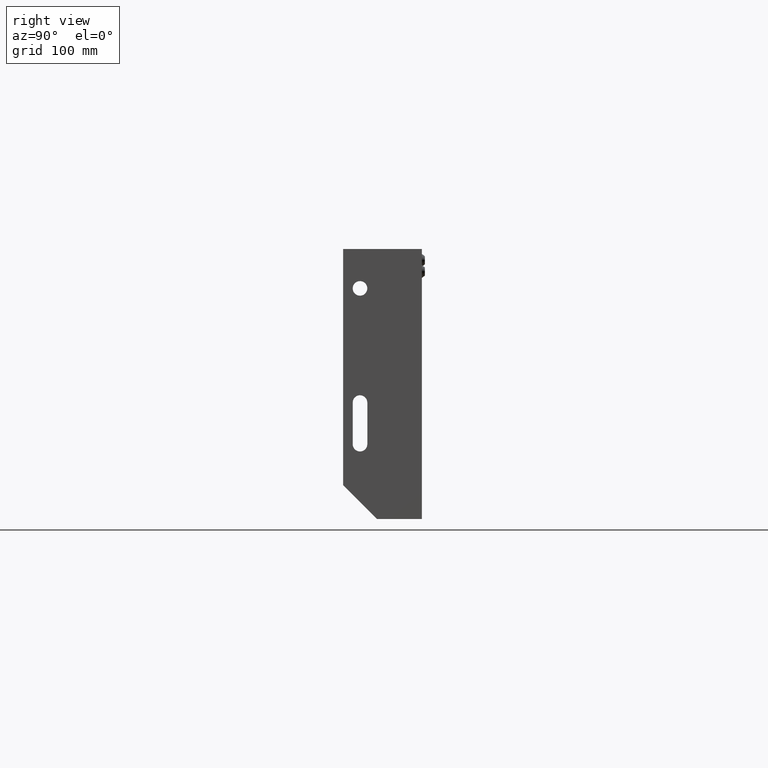
[diagram: clean part render]
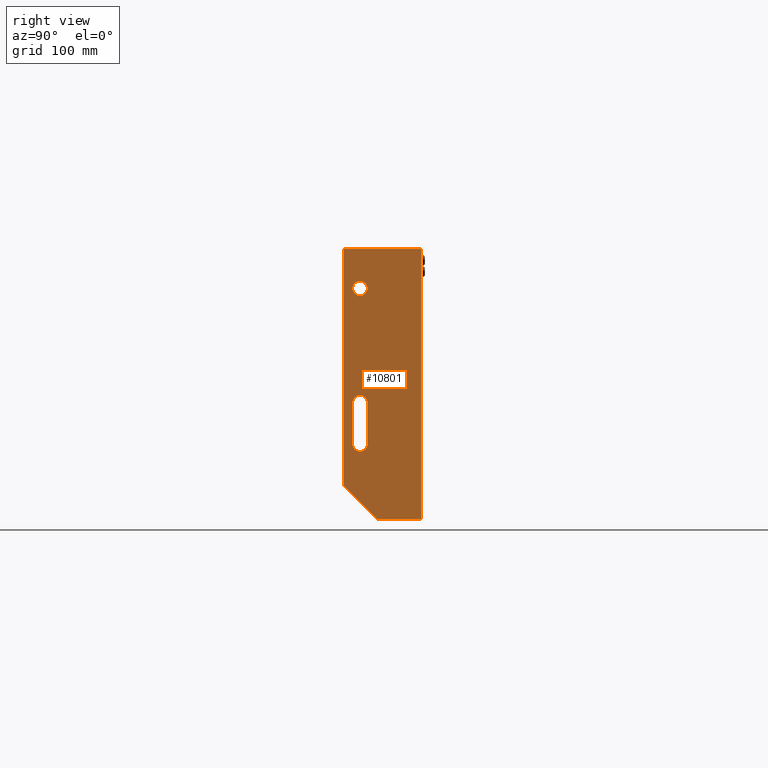
[diagram: same view with one face highlighted and labeled with its STEP entity id]
A machine part, right view. The second image highlights one B-rep face of the part: STEP entity #10801.
In plain terms, the highlighted planar face has unit normal (-1, 0, 0).
Its self-contained STEP definition (entity closure, byte-faithful):
#89 = EDGE_CURVE ( 'NONE', #11671, #13235, #15089, .T. ) ;
#115 = VERTEX_POINT ( 'NONE', #17759 ) ;
#583 = CARTESIAN_POINT ( 'NONE',  ( 300.0000000000000000, 15.00000000000008900, -35.00000000000000000 ) ) ;
#608 = ORIENTED_EDGE ( 'NONE', *, *, #8360, .T. ) ;
#806 = CARTESIAN_POINT ( 'NONE',  ( 300.0000000000000000, 21.50000000000009200, -173.4999999999998900 ) ) ;
#865 = VECTOR ( 'NONE', #10694, 1000.000000000000000 ) ;
#1007 = EDGE_LOOP ( 'NONE', ( #5867, #5473, #20531, #17769, #21899 ) ) ;
#1166 = LINE ( 'NONE', #17780, #12056 ) ;
#1618 = AXIS2_PLACEMENT_3D ( 'NONE', #583, #14887, #2655 ) ;
#1656 = FACE_BOUND ( 'NONE', #1007, .T. ) ;
#1970 = DIRECTION ( 'NONE',  ( 0.0000000000000000000, 0.0000000000000000000, 1.000000000000000000 ) ) ;
#2150 = CARTESIAN_POINT ( 'NONE',  ( 300.0000000000000000, 8.500000000000087000, -173.4999999999998900 ) ) ;
#2655 = DIRECTION ( 'NONE',  ( 0.0000000000000000000, 0.0000000000000000000, -1.000000000000000000 ) ) ;
#3509 = DIRECTION ( 'NONE',  ( 0.0000000000000000000, 3.750753461571482800E-016, -1.000000000000000000 ) ) ;
#3582 = ORIENTED_EDGE ( 'NONE', *, *, #24974, .T. ) ;
#3606 = CIRCLE ( 'NONE', #6990, 6.500000000000005300 ) ;
#3650 = CIRCLE ( 'NONE', #5698, 6.499999999999999100 ) ;
#3849 = VERTEX_POINT ( 'NONE', #22459 ) ;
#4009 = LINE ( 'NONE', #12750, #25712 ) ;
#4061 = EDGE_LOOP ( 'NONE', ( #8562, #4864, #22144, #3582, #608 ) ) ;
#4130 = CARTESIAN_POINT ( 'NONE',  ( 300.0000000000000000, 21.50000000000010700, -136.4999999999999400 ) ) ;
#4230 = VECTOR ( 'NONE', #24092, 1000.000000000000000 ) ;
#4526 = DIRECTION ( 'NONE',  ( -0.0000000000000000000, -1.652117596168387100E-017, -1.000000000000000000 ) ) ;
#4864 = ORIENTED_EDGE ( 'NONE', *, *, #23301, .T. ) ;
#4961 = DIRECTION ( 'NONE',  ( -0.0000000000000000000, -1.000000000000000000, -0.0000000000000000000 ) ) ;
#5111 = DIRECTION ( 'NONE',  ( 1.000000000000000000, 0.0000000000000000000, 0.0000000000000000000 ) ) ;
#5473 = ORIENTED_EDGE ( 'NONE', *, *, #16919, .F. ) ;
#5698 = AXIS2_PLACEMENT_3D ( 'NONE', #11457, #25706, #13490 ) ;
#5867 = ORIENTED_EDGE ( 'NONE', *, *, #24830, .F. ) ;
#5990 = DIRECTION ( 'NONE',  ( -1.000000000000000000, 0.0000000000000000000, 0.0000000000000000000 ) ) ;
#6254 = VERTEX_POINT ( 'NONE', #8780 ) ;
#6556 = VERTEX_POINT ( 'NONE', #2150 ) ;
#6852 = CIRCLE ( 'NONE', #26468, 6.500000000000005300 ) ;
#6990 = AXIS2_PLACEMENT_3D ( 'NONE', #7860, #22154, #9924 ) ;
#7495 = CARTESIAN_POINT ( 'NONE',  ( 300.0000000000000000, 1.067487649713081700E-013, -210.0000000000001100 ) ) ;
#7780 = VERTEX_POINT ( 'NONE', #7495 ) ;
#7860 = CARTESIAN_POINT ( 'NONE',  ( 300.0000000000000000, 15.00000000000009200, -173.4999999999998900 ) ) ;
#8095 = VERTEX_POINT ( 'NONE', #24277 ) ;
#8360 = EDGE_CURVE ( 'NONE', #8095, #3849, #21901, .T. ) ;
#8562 = ORIENTED_EDGE ( 'NONE', *, *, #25516, .T. ) ;
#8726 = LINE ( 'NONE', #806, #17647 ) ;
#8780 = CARTESIAN_POINT ( 'NONE',  ( 300.0000000000000000, 21.50000000000009600, -173.4999999999998900 ) ) ;
#9008 = EDGE_CURVE ( 'NONE', #16733, #18473, #3650, .T. ) ;
#9827 = CARTESIAN_POINT ( 'NONE',  ( 300.0000000000000000, 70.00000000000011400, -240.0000000000000000 ) ) ;
#9924 = DIRECTION ( 'NONE',  ( 0.0000000000000000000, 0.0000000000000000000, -1.000000000000000000 ) ) ;
#10021 = EDGE_CURVE ( 'NONE', #20327, #6254, #18274, .T. ) ;
#10694 = DIRECTION ( 'NONE',  ( -0.0000000000000000000, 0.7071067811865489100, -0.7071067811865462400 ) ) ;
#10801 = ADVANCED_FACE ( 'NONE', ( #1656, #11894, #17277 ), #14210, .F. ) ;
#11457 = CARTESIAN_POINT ( 'NONE',  ( 300.0000000000000000, 15.00000000000008900, -35.00000000000000000 ) ) ;
#11631 = VERTEX_POINT ( 'NONE', #4130 ) ;
#11671 = VERTEX_POINT ( 'NONE', #24582 ) ;
#11891 = CARTESIAN_POINT ( 'NONE',  ( 300.0000000000000000, 15.00000000000009200, -173.4999999999998900 ) ) ;
#11894 = FACE_BOUND ( 'NONE', #24027, .T. ) ;
#12056 = VECTOR ( 'NONE', #3509, 1000.000000000000000 ) ;
#12603 = DIRECTION ( 'NONE',  ( -0.0000000000000000000, -0.0000000000000000000, 1.000000000000000000 ) ) ;
#12750 = CARTESIAN_POINT ( 'NONE',  ( 300.0000000000000000, 1.067487649713081700E-013, -210.0000000000001100 ) ) ;
#13235 = VERTEX_POINT ( 'NONE', #9827 ) ;
#13490 = DIRECTION ( 'NONE',  ( 0.0000000000000000000, 0.0000000000000000000, -1.000000000000000000 ) ) ;
#13940 = DIRECTION ( 'NONE',  ( 0.0000000000000000000, 0.0000000000000000000, -1.000000000000000000 ) ) ;
#14021 = ORIENTED_EDGE ( 'NONE', *, *, #21686, .F. ) ;
#14210 = PLANE ( 'NONE',  #16810 ) ;
#14887 = DIRECTION ( 'NONE',  ( 1.000000000000000000, 0.0000000000000000000, 0.0000000000000000000 ) ) ;
#15089 = LINE ( 'NONE', #20522, #4230 ) ;
#15805 = VECTOR ( 'NONE', #4961, 1000.000000000000000 ) ;
#15889 = LINE ( 'NONE', #22947, #865 ) ;
#16733 = VERTEX_POINT ( 'NONE', #18845 ) ;
#16810 = AXIS2_PLACEMENT_3D ( 'NONE', #24389, #5990, #1970 ) ;
#16919 = EDGE_CURVE ( 'NONE', #11631, #115, #6852, .T. ) ;
#17277 = FACE_OUTER_BOUND ( 'NONE', #4061, .T. ) ;
#17303 = CARTESIAN_POINT ( 'NONE',  ( 300.0000000000000000, 15.00000000000008900, -136.4999999999999400 ) ) ;
#17647 = VECTOR ( 'NONE', #25268, 1000.000000000000000 ) ;
#17721 = CARTESIAN_POINT ( 'NONE',  ( 300.0000000000000000, 15.00000000000009200, -179.9999999999998900 ) ) ;
#17759 = CARTESIAN_POINT ( 'NONE',  ( 300.0000000000000000, 8.500000000000072800, -136.4999999999999400 ) ) ;
#17769 = ORIENTED_EDGE ( 'NONE', *, *, #10021, .F. ) ;
#17780 = CARTESIAN_POINT ( 'NONE',  ( 300.0000000000000000, 8.500000000000072800, -136.4999999999999400 ) ) ;
#18274 = CIRCLE ( 'NONE', #22481, 6.500000000000005300 ) ;
#18473 = VERTEX_POINT ( 'NONE', #23256 ) ;
#18500 = EDGE_CURVE ( 'NONE', #6254, #11631, #8726, .T. ) ;
#18699 = EDGE_CURVE ( 'NONE', #6556, #20327, #3606, .T. ) ;
#18845 = CARTESIAN_POINT ( 'NONE',  ( 300.0000000000000000, 15.00000000000008900, -41.50000000000000000 ) ) ;
#19178 = ORIENTED_EDGE ( 'NONE', *, *, #9008, .F. ) ;
#19399 = DIRECTION ( 'NONE',  ( 0.0000000000000000000, 0.0000000000000000000, -1.000000000000000000 ) ) ;
#19698 = LINE ( 'NONE', #24827, #25740 ) ;
#20327 = VERTEX_POINT ( 'NONE', #17721 ) ;
#20522 = CARTESIAN_POINT ( 'NONE',  ( 300.0000000000000000, 70.00000000000011400, -240.0000000000000000 ) ) ;
#20531 = ORIENTED_EDGE ( 'NONE', *, *, #18500, .F. ) ;
#20732 = CIRCLE ( 'NONE', #1618, 6.499999999999999100 ) ;
#21301 = CARTESIAN_POINT ( 'NONE',  ( 300.0000000000000000, 1.102182119232617800E-013, 0.0000000000000000000 ) ) ;
#21686 = EDGE_CURVE ( 'NONE', #18473, #16733, #20732, .T. ) ;
#21899 = ORIENTED_EDGE ( 'NONE', *, *, #18699, .F. ) ;
#21901 = LINE ( 'NONE', #21301, #15805 ) ;
#22144 = ORIENTED_EDGE ( 'NONE', *, *, #89, .T. ) ;
#22154 = DIRECTION ( 'NONE',  ( 1.000000000000000000, 0.0000000000000000000, 0.0000000000000000000 ) ) ;
#22459 = CARTESIAN_POINT ( 'NONE',  ( 300.0000000000000000, 1.102182119232617800E-013, 0.0000000000000000000 ) ) ;
#22481 = AXIS2_PLACEMENT_3D ( 'NONE', #11891, #26153, #13940 ) ;
#22947 = CARTESIAN_POINT ( 'NONE',  ( 300.0000000000000000, 30.00000000000011700, -240.0000000000000000 ) ) ;
#23256 = CARTESIAN_POINT ( 'NONE',  ( 300.0000000000000000, 15.00000000000008900, -28.50000000000000400 ) ) ;
#23301 = EDGE_CURVE ( 'NONE', #7780, #11671, #15889, .T. ) ;
#24027 = EDGE_LOOP ( 'NONE', ( #19178, #14021 ) ) ;
#24092 = DIRECTION ( 'NONE',  ( -0.0000000000000000000, 1.000000000000000000, -0.0000000000000000000 ) ) ;
#24277 = CARTESIAN_POINT ( 'NONE',  ( 300.0000000000000000, 70.00000000000011400, 0.0000000000000000000 ) ) ;
#24389 = CARTESIAN_POINT ( 'NONE',  ( 300.0000000000000000, 0.0000000000000000000, 0.0000000000000000000 ) ) ;
#24582 = CARTESIAN_POINT ( 'NONE',  ( 300.0000000000000000, 30.00000000000011700, -240.0000000000000000 ) ) ;
#24827 = CARTESIAN_POINT ( 'NONE',  ( 300.0000000000000000, 70.00000000000011400, 0.0000000000000000000 ) ) ;
#24830 = EDGE_CURVE ( 'NONE', #115, #6556, #1166, .T. ) ;
#24974 = EDGE_CURVE ( 'NONE', #13235, #8095, #19698, .T. ) ;
#25268 = DIRECTION ( 'NONE',  ( 0.0000000000000000000, 3.750753461571482800E-016, 1.000000000000000000 ) ) ;
#25516 = EDGE_CURVE ( 'NONE', #3849, #7780, #4009, .T. ) ;
#25706 = DIRECTION ( 'NONE',  ( 1.000000000000000000, 0.0000000000000000000, 0.0000000000000000000 ) ) ;
#25712 = VECTOR ( 'NONE', #4526, 1000.000000000000000 ) ;
#25740 = VECTOR ( 'NONE', #12603, 1000.000000000000000 ) ;
#26153 = DIRECTION ( 'NONE',  ( 1.000000000000000000, 0.0000000000000000000, 0.0000000000000000000 ) ) ;
#26468 = AXIS2_PLACEMENT_3D ( 'NONE', #17303, #5111, #19399 ) ;